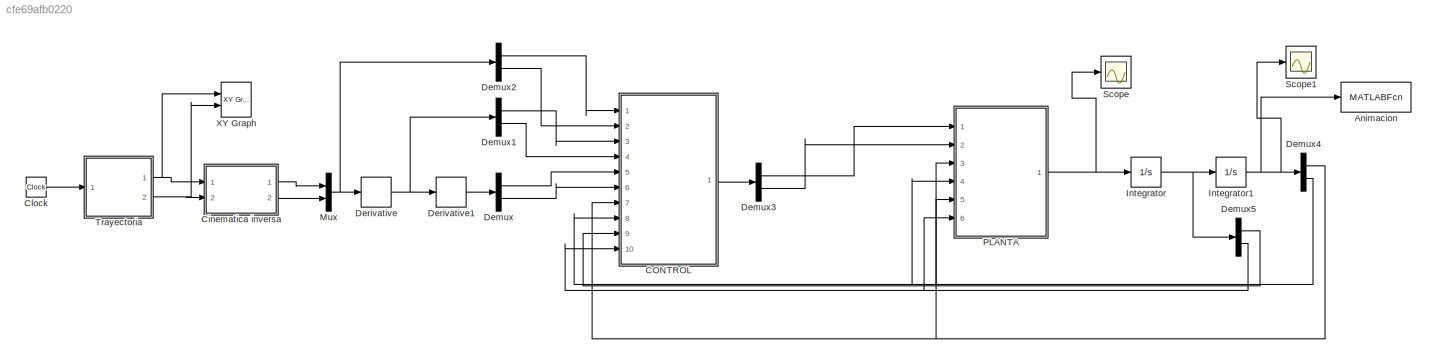
MODEL slx_cfe69afb0220
KIND model
CONFIG AbsTol = auto
CONFIG EnableMultiTasking = off
CONFIG FixedStep = 0.1
CONFIG MaxStep = auto
CONFIG MinStep = auto
CONFIG RelTol = 1e-3
CONFIG SampleTimeConstraint = Unconstrained
CONFIG Solver = FixedStepAuto
CONFIG SolverName = FixedStepAuto
CONFIG StartTime = 0.0
CONFIG StopTime = 10
BLOCK [MATLABFcn] Animacion
  MATLABFcn = animacion3
  OutputDimensions = 0
  Ports = [1]
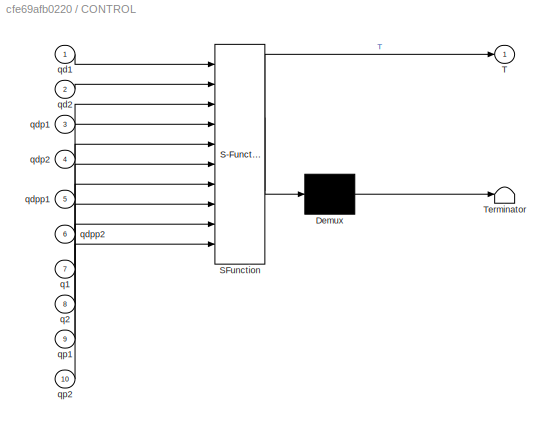
BLOCK [SubSystem] CONTROL
  ErrorFcn = Stateflow.Translate.translate
  PermitHierarchicalResolution = ExplicitOnly
  Ports = [10, 1]
  RequestExecContextInheritance = off
  SFBlockType = MATLAB Function
  TreatAsAtomicUnit = on
BLOCK [Demux] CONTROL/ Demux 
  Outputs = 1
  Ports = [1, 1]
BLOCK [S-Function] CONTROL/ SFunction 
  EnableBusSupport = on
  FunctionName = sf_sfun
  PortCounts = [10 2]
  Ports = [10, 2]
  SFcnIsStateOwnerBlock = off
  SFunctionDeploymentMode = off
  Tag = Stateflow S-Function 4
BLOCK [Terminator] CONTROL/ Terminator 
BLOCK [Outport] CONTROL/T
BLOCK [Inport] CONTROL/q1
  Port = 7
BLOCK [Inport] CONTROL/q2
  Port = 8
BLOCK [Inport] CONTROL/qd1
BLOCK [Inport] CONTROL/qd2
  Port = 2
BLOCK [Inport] CONTROL/qdp1
  Port = 3
BLOCK [Inport] CONTROL/qdp2
  Port = 4
BLOCK [Inport] CONTROL/qdpp1
  Port = 5
BLOCK [Inport] CONTROL/qdpp2
  Port = 6
BLOCK [Inport] CONTROL/qp1
  Port = 9
BLOCK [Inport] CONTROL/qp2
  Port = 10
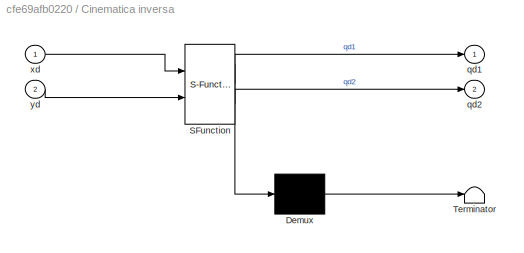
BLOCK [SubSystem] Cinematica inversa
  ErrorFcn = Stateflow.Translate.translate
  PermitHierarchicalResolution = ExplicitOnly
  Ports = [2, 2]
  RequestExecContextInheritance = off
  SFBlockType = MATLAB Function
  TreatAsAtomicUnit = on
BLOCK [Demux] Cinematica inversa/ Demux 
  Outputs = 1
  Ports = [1, 1]
BLOCK [S-Function] Cinematica inversa/ SFunction 
  EnableBusSupport = on
  FunctionName = sf_sfun
  PortCounts = [2 3]
  Ports = [2, 3]
  SFcnIsStateOwnerBlock = off
  SFunctionDeploymentMode = off
  Tag = Stateflow S-Function 3
BLOCK [Terminator] Cinematica inversa/ Terminator 
BLOCK [Outport] Cinematica inversa/qd1
BLOCK [Outport] Cinematica inversa/qd2
  Port = 2
BLOCK [Inport] Cinematica inversa/xd
BLOCK [Inport] Cinematica inversa/yd
  Port = 2
BLOCK [Clock] Clock
  Decimation = 1
BLOCK [Demux] Demux
  Outputs = 2
  Ports = [1, 2]
BLOCK [Demux] Demux1
  Outputs = 2
  Ports = [1, 2]
BLOCK [Demux] Demux2
  Outputs = 2
  Ports = [1, 2]
BLOCK [Demux] Demux3
  Outputs = 2
  Ports = [1, 2]
BLOCK [Demux] Demux4
  Outputs = 2
  Ports = [1, 2]
BLOCK [Demux] Demux5
  Outputs = 2
  Ports = [1, 2]
BLOCK [Derivative] Derivative
BLOCK [Derivative] Derivative1
BLOCK [Integrator] Integrator
  InitialCondition = [0 0]
  Ports = [1, 1]
BLOCK [Integrator] Integrator1
  InitialCondition = [0 0]
  Ports = [1, 1]
BLOCK [Mux] Mux
  DisplayOption = bar
  Inputs = 2
  Ports = [2, 1]
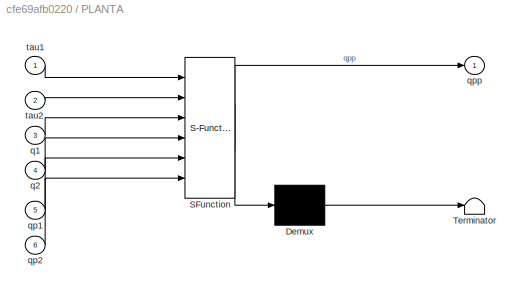
BLOCK [SubSystem] PLANTA
  ErrorFcn = Stateflow.Translate.translate
  PermitHierarchicalResolution = ExplicitOnly
  Ports = [6, 1]
  RequestExecContextInheritance = off
  SFBlockType = MATLAB Function
  TreatAsAtomicUnit = on
BLOCK [Demux] PLANTA/ Demux 
  Outputs = 1
  Ports = [1, 1]
BLOCK [S-Function] PLANTA/ SFunction 
  EnableBusSupport = on
  FunctionName = sf_sfun
  PortCounts = [6 2]
  Ports = [6, 2]
  SFcnIsStateOwnerBlock = off
  SFunctionDeploymentMode = off
  Tag = Stateflow S-Function 2
BLOCK [Terminator] PLANTA/ Terminator 
BLOCK [Inport] PLANTA/q1
  Port = 3
BLOCK [Inport] PLANTA/q2
  Port = 4
BLOCK [Inport] PLANTA/qp1
  Port = 5
BLOCK [Inport] PLANTA/qp2
  Port = 6
BLOCK [Outport] PLANTA/qpp
BLOCK [Inport] PLANTA/tau1
BLOCK [Inport] PLANTA/tau2
  Port = 2
BLOCK [Scope] Scope
  Floating = off
  NumInputPorts = 1
  Ports = [1]
  ScopeSpecificationString = Simulink.scopes.TimeScopeBlockCfg('CurrentConfiguration', extmgr.ConfigurationSet(extmgr.Configuration('Core','General UI',true),extmgr.Configuration('Core','Source UI',true),extmgr.Configuration('Sources','WiredSimulink',true),extmgr.Configuration('Visuals','Time Domain',true,'SerializedDisplays',{struct('MinYLimReal','-7.61123','MaxYLimReal','11.37869','YLabelReal','','MinYLimMag','0.00000','Max...<+1343ch>
BLOCK [Scope] Scope1
  Floating = off
  NumInputPorts = 1
  Ports = [1]
  ScopeSpecificationString = Simulink.scopes.TimeScopeBlockCfg('CurrentConfiguration', extmgr.ConfigurationSet(extmgr.Configuration('Core','General UI',true),extmgr.Configuration('Core','Source UI',true),extmgr.Configuration('Sources','WiredSimulink',true,'DataLoggingVariableName','ScopeData1'),extmgr.Configuration('Visuals','Time Domain',true,'SerializedDisplays',{struct('MinYLimReal','-0.81977','MaxYLimReal','3.40884','YLab...<+1388ch>
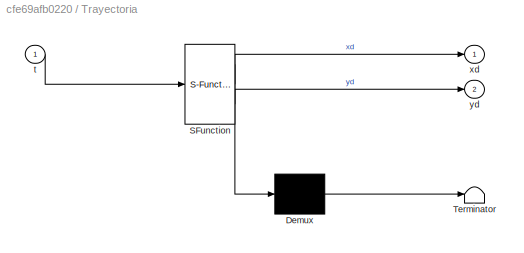
BLOCK [SubSystem] Trayectoria
  ErrorFcn = Stateflow.Translate.translate
  PermitHierarchicalResolution = ExplicitOnly
  Ports = [1, 2]
  RequestExecContextInheritance = off
  SFBlockType = MATLAB Function
  TreatAsAtomicUnit = on
BLOCK [Demux] Trayectoria/ Demux 
  Outputs = 1
  Ports = [1, 1]
BLOCK [S-Function] Trayectoria/ SFunction 
  EnableBusSupport = on
  FunctionName = sf_sfun
  PortCounts = [1 3]
  Ports = [1, 3]
  SFcnIsStateOwnerBlock = off
  SFunctionDeploymentMode = off
  Tag = Stateflow S-Function 1
BLOCK [Terminator] Trayectoria/ Terminator 
BLOCK [Inport] Trayectoria/t
BLOCK [Outport] Trayectoria/xd
BLOCK [Outport] Trayectoria/yd
  Port = 2
BLOCK [Reference] XY Graph  REF=simulink/Sinks/XY Graph
  Ports = [2]
  SourceBlock = simulink/Sinks/XY Graph
  SourceProductBaseCode = SL
  SourceType = XY scope.
LINE CONTROL:1 -> Demux3:1
LINE Cinematica inversa:1 -> Mux:1
LINE Cinematica inversa:2 -> Mux:2
LINE Clock:1 -> Trayectoria:1
LINE Demux1:1 -> CONTROL:3
LINE Demux1:2 -> CONTROL:4
LINE Demux2:1 -> CONTROL:1
LINE Demux2:2 -> CONTROL:2
LINE Demux3:1 -> PLANTA:1
LINE Demux3:2 -> PLANTA:2
NET Demux4:1 -> CONTROL:7, PLANTA:3
NET Demux4:2 -> CONTROL:8, PLANTA:4
NET Demux5:1 -> CONTROL:9, PLANTA:5
NET Demux5:2 -> CONTROL:10, PLANTA:6
LINE Demux:1 -> CONTROL:5
LINE Demux:2 -> CONTROL:6
LINE Derivative1:1 -> Demux:1
NET Derivative:1 -> Demux1:1, Derivative1:1
NET Integrator1:1 -> Animacion:1, Demux4:1, Scope1:1
NET Integrator:1 -> Demux5:1, Integrator1:1
NET Mux:1 -> Demux2:1, Derivative:1
NET PLANTA:1 -> Integrator:1, Scope:1
NET Trayectoria:1 -> Cinematica inversa:1, XY Graph:1
NET Trayectoria:2 -> Cinematica inversa:2, XY Graph:2
note: NET lines group one-source signal fan-out (src -> all destinations, sorted); 1:1 wires keep LINE
CHART Trayectoria states=1 transitions=1
  STATE_LABEL 'eML_blk_kernel()'
  STATE_LABEL 'SCRIPT:\nfunction [xd,yd] = fcn(t)\n% a=0.15;\n% R=0.2;\n% n=3;\n% hx=0.3;\n% hy=0.1;\n% T=10;\n% f=1/T;\n% w=2*pi*f;\n% xd=hx+(a+R*cos(n*w*t)^2)*cos(w*t);\n% yd=hy+(a+R*cos(n*w*t)^2)*sin(w*t);\n\na=0.15;\nR=0.2;\nhx=0.2;\nhy=0;\nT=10;\nf=1/T;\nw=2*pi*f;\nxd=hx+a*cos(w*t)/(1+sin(w*t)^2);\nyd=hy+a*sin(w*t)*cos(w*t)/(1+sin(w*t)^2);'
CHART PLANTA states=1 transitions=1
  STATE_LABEL 'eML_blk_kernel()'
  STATE_LABEL 'SCRIPT:\nfunction qpp = fcn(tau1,tau2,q1,q2,qp1,qp2)\n%Parámetros del primer eslabon\n\nm1 = 0.067  %Masa de la barra 1(kg)\nm2 =0.067  %Masa de la barra 2 (kg)\nl1 = 0.3  % Longitud de la barra 1 (m)\nlc1 = 0.14  % Longitud al centro de masa de la barra 2 (m)\n\nl2= 0.3 %0Longitud de la baraa 2 (m)\nlc2=0.15 %Longitud al centro de masa de la barra 2(m)\nb1 = 0.0017  % Coeficiente de fricción viscosa de la b...<+835ch>'
CHART Cinematica inversa states=1 transitions=1
  STATE_LABEL 'eML_blk_kernel()'
  STATE_LABEL 'SCRIPT:\nfunction [qd1,qd2] = fcn(xd,yd)\nl1=0.3;\nl2=0.3;\ncosq2=(xd^2+yd^2-l1^2-l2^2)/(2*l1*l2);\nqd2=atan2(sqrt(1-cosq2^2),cosq2);\n\nqd1 = atan2(xd,-yd)-atan2(l2*sin(qd2),(l1+l2*cos(qd2)));\n'
CHART CONTROL states=1 transitions=1
  STATE_LABEL 'eML_blk_kernel()'
  STATE_LABEL 'SCRIPT:\nfunction T = fcn(qd1,qd2,qdp1,qdp2,qdpp1,qdpp2,q1,q2,qp1,qp2)\n%Control por par calculado\n\nm1 = 0.067  %Masa de la barra 1(kg)\nm2 =0.067  %Masa de la barra 2 (kg)\nl1 = 0.3  % Longitud de la barra 1 (m)\nlc1 = 0.14  % Longitud al centro de masa de la barra 2 (m)\n\nl2= 0.3 %0Longitud de la baraa 2 (m)\nlc2=0.15 %Longitud al centro de masa de la barra 2(m)\nb1 = 0.0017  % Coeficiente de fricción v...<+1154ch>'
CHART  states=0 transitions=0
CHART  states=0 transitions=0
CHART  states=0 transitions=0
CHART  states=0 transitions=0
